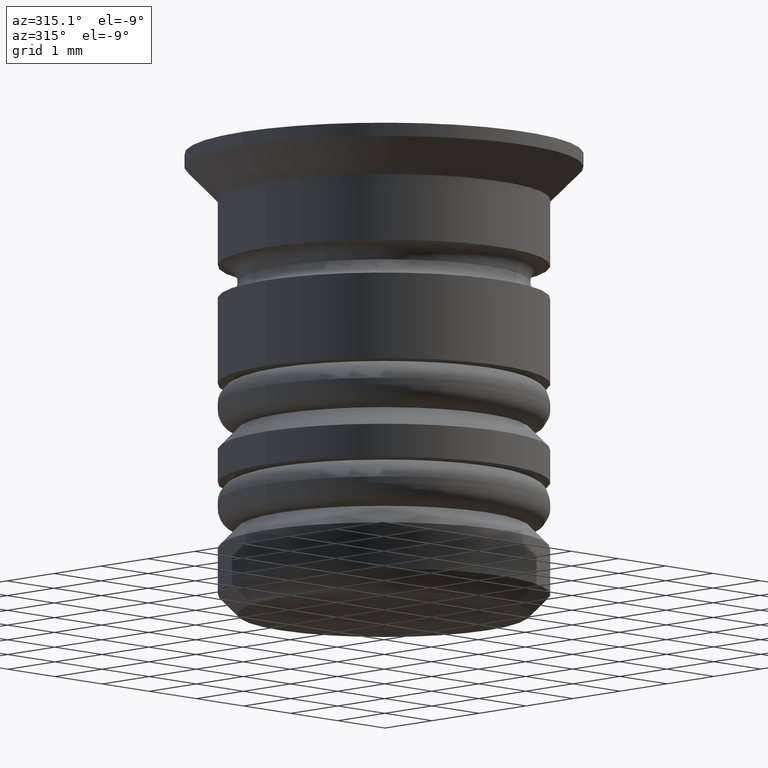
[diagram: clean part render]
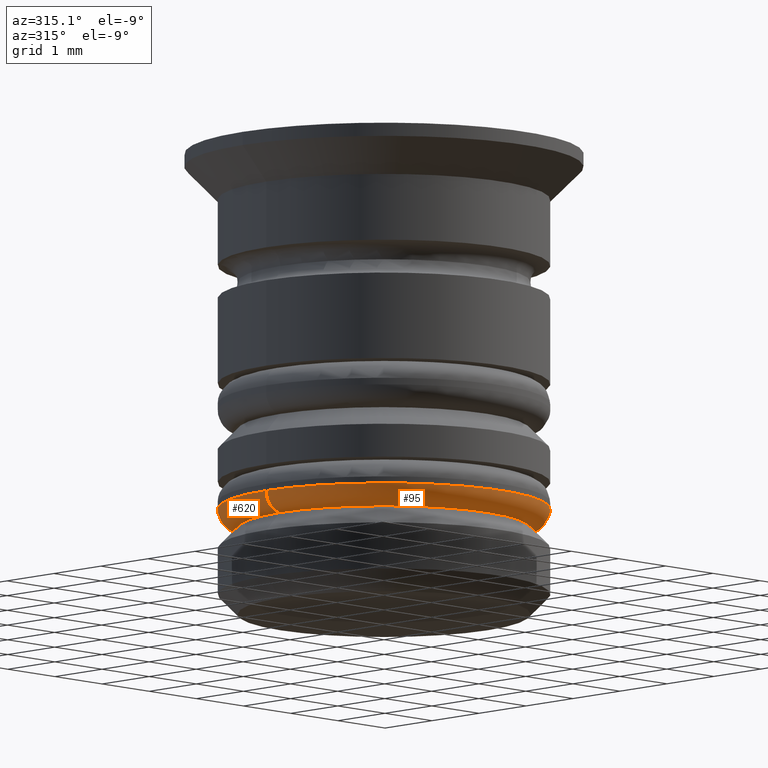
[diagram: same view with one multi-face feature highlighted, each face labeled with its STEP entity id]
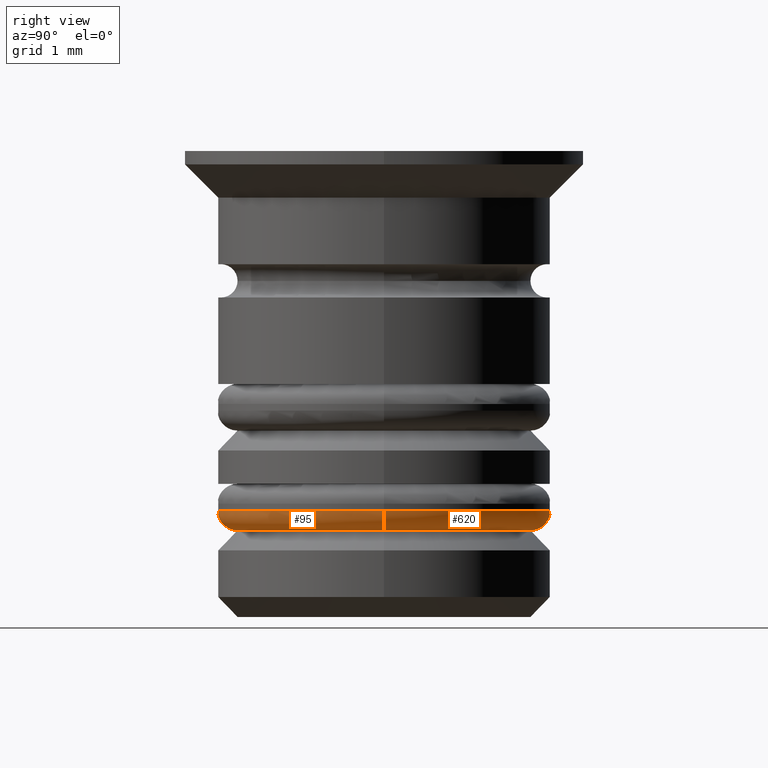
[diagram: same view with one multi-face feature highlighted, each face labeled with its STEP entity id]
A machine part, auxiliary view. The highlighted faces form ONE feature: a constant-radius fillet chain: 2 tangent blend faces with common blend radius 0.3 mm. The faces share edges in the B-rep.
A second angle (right view) of the same feature is appended — it is thin or edge-on in the first view.
Their STEP definitions:
[1] entity #95 (Torus):
#25 = ORIENTED_EDGE ( 'NONE', *, *, #949, .F. ) ;
#67 = EDGE_CURVE ( 'NONE', #585, #392, #782, .T. ) ;
#71 = CARTESIAN_POINT ( 'NONE',  ( -2.500000000000001776, 3.061616997868385606E-16, -5.400000000000009237 ) ) ;
#95 = ADVANCED_FACE ( 'NONE', ( #1264 ), #1250, .T. ) ;
#158 = AXIS2_PLACEMENT_3D ( 'NONE', #1324, #883, #737 ) ;
#206 = EDGE_CURVE ( 'NONE', #901, #557, #489, .T. ) ;
#215 = ORIENTED_EDGE ( 'NONE', *, *, #67, .F. ) ;
#281 = CARTESIAN_POINT ( 'NONE',  ( 2.200000000000001954, 0.000000000000000000, -5.700000000000009059 ) ) ;
#290 = DIRECTION ( 'NONE',  ( 0.000000000000000000, 0.000000000000000000, 1.000000000000000000 ) ) ;
#392 = VERTEX_POINT ( 'NONE', #71 ) ;
#489 = CIRCLE ( 'NONE', #158, 0.2999999999999999334 ) ;
#557 = VERTEX_POINT ( 'NONE', #1167 ) ;
#564 = DIRECTION ( 'NONE',  ( 0.000000000000000000, 0.000000000000000000, 1.000000000000000000 ) ) ;
#585 = VERTEX_POINT ( 'NONE', #1221 ) ;
#693 = CIRCLE ( 'NONE', #1726, 2.500000000000001776 ) ;
#699 = DIRECTION ( 'NONE',  ( 1.000000000000000000, 0.000000000000000000, 0.000000000000000000 ) ) ;
#702 = ORIENTED_EDGE ( 'NONE', *, *, #206, .T. ) ;
#710 = DIRECTION ( 'NONE',  ( 1.000000000000000000, 0.000000000000000000, 0.000000000000000000 ) ) ;
#712 = CARTESIAN_POINT ( 'NONE',  ( 0.000000000000000000, 0.000000000000000000, -5.400000000000009237 ) ) ;
#737 = DIRECTION ( 'NONE',  ( 0.000000000000000000, 0.000000000000000000, -1.000000000000000000 ) ) ;
#782 = CIRCLE ( 'NONE', #1674, 0.2999999999999999334 ) ;
#883 = DIRECTION ( 'NONE',  ( 0.000000000000000000, -1.000000000000000000, 0.000000000000000000 ) ) ;
#901 = VERTEX_POINT ( 'NONE', #281 ) ;
#949 = EDGE_CURVE ( 'NONE', #392, #557, #693, .T. ) ;
#967 = DIRECTION ( 'NONE',  ( -1.000000000000000000, 1.224646799147353207E-16, 0.000000000000000000 ) ) ;
#1132 = AXIS2_PLACEMENT_3D ( 'NONE', #712, #564, #699 ) ;
#1167 = CARTESIAN_POINT ( 'NONE',  ( 2.500000000000001776, 0.000000000000000000, -5.400000000000009237 ) ) ;
#1174 = EDGE_LOOP ( 'NONE', ( #215, #1760, #702, #25 ) ) ;
#1221 = CARTESIAN_POINT ( 'NONE',  ( -2.200000000000001954, 2.877919977996282293E-16, -5.700000000000009059 ) ) ;
#1250 = TOROIDAL_SURFACE ( 'NONE', #1132, 2.200000000000001954, 0.2999999999999999889 ) ;
#1264 = FACE_OUTER_BOUND ( 'NONE', #1174, .T. ) ;
#1272 = DIRECTION ( 'NONE',  ( 1.000000000000000000, 0.000000000000000000, 0.000000000000000000 ) ) ;
#1324 = CARTESIAN_POINT ( 'NONE',  ( 2.200000000000001954, 0.000000000000000000, -5.400000000000009237 ) ) ;
#1406 = DIRECTION ( 'NONE',  ( 1.224646799147353207E-16, 1.000000000000000000, -0.000000000000000000 ) ) ;
#1537 = CIRCLE ( 'NONE', #1683, 2.200000000000001954 ) ;
#1547 = CARTESIAN_POINT ( 'NONE',  ( -2.200000000000001954, 2.694222958124179472E-16, -5.400000000000009237 ) ) ;
#1566 = CARTESIAN_POINT ( 'NONE',  ( 0.000000000000000000, 0.000000000000000000, -5.400000000000009237 ) ) ;
#1672 = DIRECTION ( 'NONE',  ( -0.000000000000000000, -0.000000000000000000, -1.000000000000000000 ) ) ;
#1674 = AXIS2_PLACEMENT_3D ( 'NONE', #1547, #1406, #967 ) ;
#1683 = AXIS2_PLACEMENT_3D ( 'NONE', #1815, #1672, #710 ) ;
#1722 = EDGE_CURVE ( 'NONE', #901, #585, #1537, .T. ) ;
#1726 = AXIS2_PLACEMENT_3D ( 'NONE', #1566, #290, #1272 ) ;
#1760 = ORIENTED_EDGE ( 'NONE', *, *, #1722, .F. ) ;
#1815 = CARTESIAN_POINT ( 'NONE',  ( 0.000000000000000000, 0.000000000000000000, -5.700000000000009059 ) ) ;
[2] entity #620 (Torus):
#67 = EDGE_CURVE ( 'NONE', #585, #392, #782, .T. ) ;
#71 = CARTESIAN_POINT ( 'NONE',  ( -2.500000000000001776, 3.061616997868385606E-16, -5.400000000000009237 ) ) ;
#99 = CARTESIAN_POINT ( 'NONE',  ( 0.000000000000000000, 0.000000000000000000, -5.400000000000009237 ) ) ;
#158 = AXIS2_PLACEMENT_3D ( 'NONE', #1324, #883, #737 ) ;
#164 = AXIS2_PLACEMENT_3D ( 'NONE', #99, #817, #1794 ) ;
#206 = EDGE_CURVE ( 'NONE', #901, #557, #489, .T. ) ;
#281 = CARTESIAN_POINT ( 'NONE',  ( 2.200000000000001954, 0.000000000000000000, -5.700000000000009059 ) ) ;
#362 = CARTESIAN_POINT ( 'NONE',  ( 0.000000000000000000, 0.000000000000000000, -5.400000000000009237 ) ) ;
#392 = VERTEX_POINT ( 'NONE', #71 ) ;
#489 = CIRCLE ( 'NONE', #158, 0.2999999999999999334 ) ;
#519 = CARTESIAN_POINT ( 'NONE',  ( 0.000000000000000000, 0.000000000000000000, -5.700000000000009059 ) ) ;
#544 = DIRECTION ( 'NONE',  ( 1.000000000000000000, 0.000000000000000000, 0.000000000000000000 ) ) ;
#557 = VERTEX_POINT ( 'NONE', #1167 ) ;
#574 = TOROIDAL_SURFACE ( 'NONE', #1168, 2.200000000000001954, 0.2999999999999999889 ) ;
#585 = VERTEX_POINT ( 'NONE', #1221 ) ;
#620 = ADVANCED_FACE ( 'NONE', ( #1072 ), #574, .T. ) ;
#737 = DIRECTION ( 'NONE',  ( 0.000000000000000000, 0.000000000000000000, -1.000000000000000000 ) ) ;
#754 = EDGE_LOOP ( 'NONE', ( #1379, #1241, #1387, #1293 ) ) ;
#782 = CIRCLE ( 'NONE', #1674, 0.2999999999999999334 ) ;
#817 = DIRECTION ( 'NONE',  ( 0.000000000000000000, 0.000000000000000000, 1.000000000000000000 ) ) ;
#883 = DIRECTION ( 'NONE',  ( 0.000000000000000000, -1.000000000000000000, 0.000000000000000000 ) ) ;
#901 = VERTEX_POINT ( 'NONE', #281 ) ;
#922 = DIRECTION ( 'NONE',  ( 1.000000000000000000, 0.000000000000000000, 0.000000000000000000 ) ) ;
#965 = CIRCLE ( 'NONE', #164, 2.500000000000001776 ) ;
#967 = DIRECTION ( 'NONE',  ( -1.000000000000000000, 1.224646799147353207E-16, 0.000000000000000000 ) ) ;
#1072 = FACE_OUTER_BOUND ( 'NONE', #754, .T. ) ;
#1094 = DIRECTION ( 'NONE',  ( 0.000000000000000000, 0.000000000000000000, 1.000000000000000000 ) ) ;
#1139 = CIRCLE ( 'NONE', #1412, 2.200000000000001954 ) ;
#1167 = CARTESIAN_POINT ( 'NONE',  ( 2.500000000000001776, 0.000000000000000000, -5.400000000000009237 ) ) ;
#1168 = AXIS2_PLACEMENT_3D ( 'NONE', #362, #1094, #922 ) ;
#1221 = CARTESIAN_POINT ( 'NONE',  ( -2.200000000000001954, 2.877919977996282293E-16, -5.700000000000009059 ) ) ;
#1241 = ORIENTED_EDGE ( 'NONE', *, *, #67, .T. ) ;
#1293 = ORIENTED_EDGE ( 'NONE', *, *, #206, .F. ) ;
#1324 = CARTESIAN_POINT ( 'NONE',  ( 2.200000000000001954, 0.000000000000000000, -5.400000000000009237 ) ) ;
#1379 = ORIENTED_EDGE ( 'NONE', *, *, #1388, .F. ) ;
#1387 = ORIENTED_EDGE ( 'NONE', *, *, #1678, .F. ) ;
#1388 = EDGE_CURVE ( 'NONE', #585, #901, #1139, .T. ) ;
#1406 = DIRECTION ( 'NONE',  ( 1.224646799147353207E-16, 1.000000000000000000, -0.000000000000000000 ) ) ;
#1412 = AXIS2_PLACEMENT_3D ( 'NONE', #519, #1489, #544 ) ;
#1489 = DIRECTION ( 'NONE',  ( -0.000000000000000000, -0.000000000000000000, -1.000000000000000000 ) ) ;
#1547 = CARTESIAN_POINT ( 'NONE',  ( -2.200000000000001954, 2.694222958124179472E-16, -5.400000000000009237 ) ) ;
#1674 = AXIS2_PLACEMENT_3D ( 'NONE', #1547, #1406, #967 ) ;
#1678 = EDGE_CURVE ( 'NONE', #557, #392, #965, .T. ) ;
#1794 = DIRECTION ( 'NONE',  ( 1.000000000000000000, 0.000000000000000000, 0.000000000000000000 ) ) ;